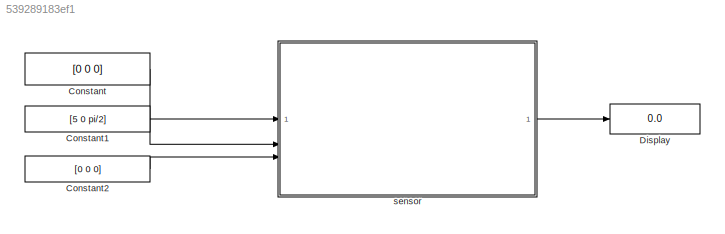
MODEL slx_539289183ef1
KIND model
CONFIG AbsTol = auto
CONFIG EnableMultiTasking = off
CONFIG FixedStep = auto
CONFIG MaxStep = auto
CONFIG MinStep = auto
CONFIG RelTol = 1e-3
CONFIG SampleTimeConstraint = Unconstrained
CONFIG SolverName = VariableStepAuto
CONFIG StartTime = 0.0
CONFIG StopTime = 1
BLOCK [Constant] Constant
  Value = [0 0 0]
BLOCK [Constant] Constant1
  Value = [5 0 pi/2]
BLOCK [Constant] Constant2
  Value = [0 0 0]
BLOCK [Display] Display
  Decimation = 1
BLOCK [SubSystem] sensor
  ReferencedSubsystem = sensor
LINE Constant1:1 -> sensor:2
LINE Constant2:1 -> sensor:3
LINE Constant:1 -> sensor:1
LINE sensor:1 -> Display:1
